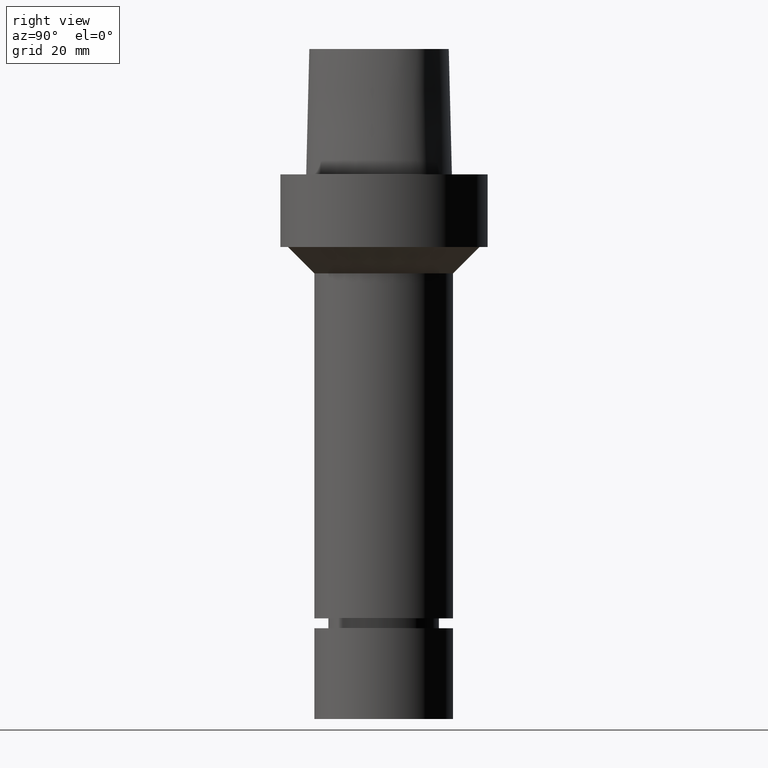
[diagram: clean part render]
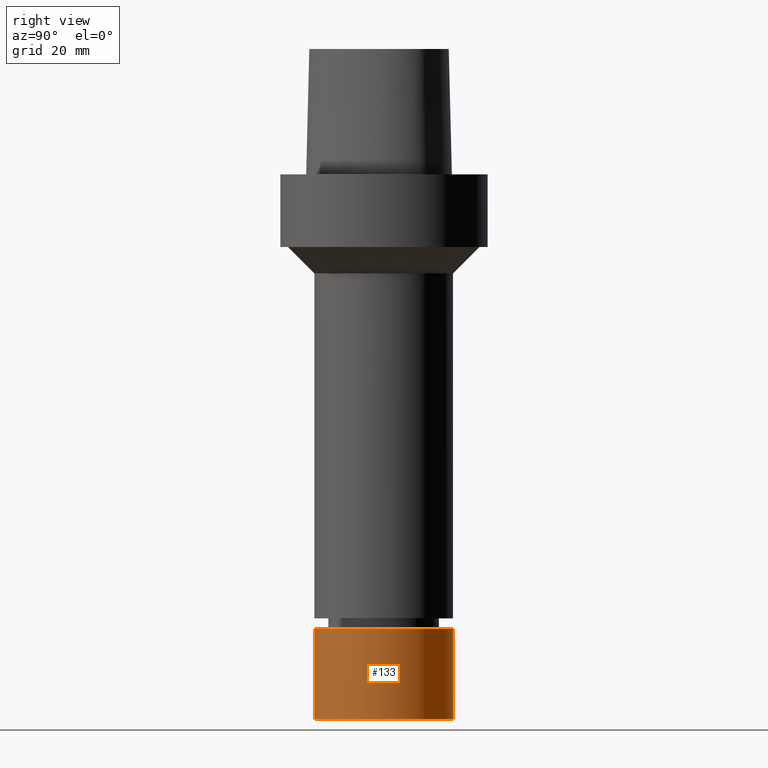
[diagram: same view with one face highlighted and labeled with its STEP entity id]
A machine part, right view. The second image highlights one B-rep face of the part: STEP entity #133.
In plain terms, the highlighted cylindrical surface (bore or boss wall) has radius 21 mm, axis along (0, 0, -1).
Its self-contained STEP definition (entity closure, byte-faithful):
#133=ADVANCED_FACE('Unnamed[1]',(#281,#282),#283,.T.);
#138=EDGE_CURVE('Unnamed[1]',#288,#288,#289,.T.);
#168=EDGE_CURVE('Unnamed[1]',#331,#331,#332,.T.);
#281=FACE_BOUND('',#662,.T.);
#282=FACE_BOUND('',#663,.T.);
#283=CYLINDRICAL_SURFACE('',#664,21.0);
#288=VERTEX_POINT('',#670);
#289=CIRCLE('',#671,21.0);
#331=VERTEX_POINT('',#756);
#332=CIRCLE('',#757,21.0);
#662=EDGE_LOOP('',(#855));
#663=EDGE_LOOP('',(#856));
#664=AXIS2_PLACEMENT_3D('',#857,#858,#859);
#670=CARTESIAN_POINT('',(1.01033360929657E-014,21.0,-165.0));
#671=AXIS2_PLACEMENT_3D('',#861,#862,#863);
#756=CARTESIAN_POINT('',(8.41944674413805E-015,21.0,-137.5));
#757=AXIS2_PLACEMENT_3D('',#906,#907,#908);
#855=ORIENTED_EDGE('',*,*,#138,.F.);
#856=ORIENTED_EDGE('',*,*,#168,.T.);
#857=CARTESIAN_POINT('',(9.26139141855186E-015,1.85227828371037E-014,-151.25));
#858=DIRECTION('',(6.12323399573677E-017,1.22464679914735E-016,-1.0));
#859=DIRECTION('',(-1.23259516440783E-032,1.0,1.22464679914735E-016));
#861=CARTESIAN_POINT('',(1.01033360929657E-014,2.02066721859313E-014,-165.0));
#862=DIRECTION('',(6.12323399573677E-017,1.22464679914735E-016,-1.0));
#863=DIRECTION('',(-1.23259516440783E-032,1.0,1.22464679914735E-016));
#906=CARTESIAN_POINT('',(8.41944674413805E-015,1.68388934882761E-014,-137.5));
#907=DIRECTION('',(6.12323399573677E-017,1.22464679914735E-016,-1.0));
#908=DIRECTION('',(-1.23259516440783E-032,1.0,1.22464679914735E-016));